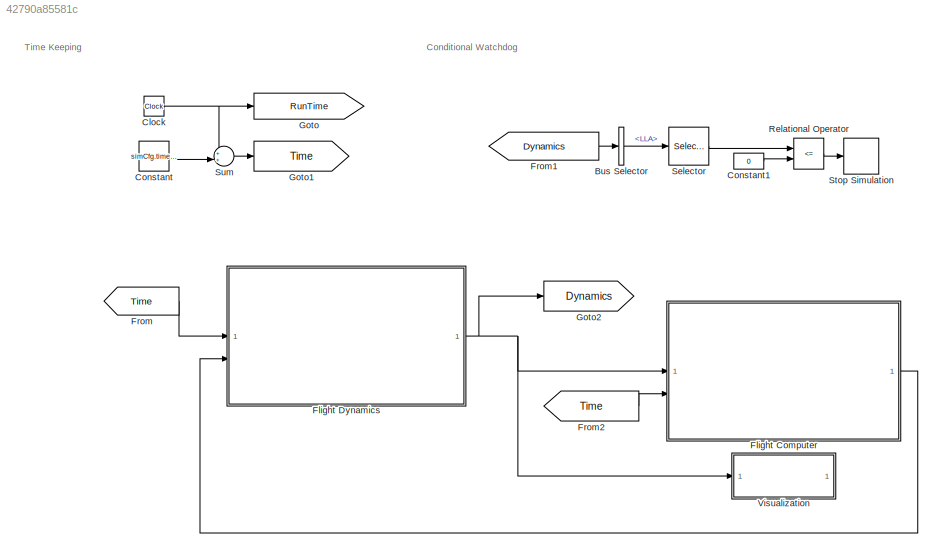
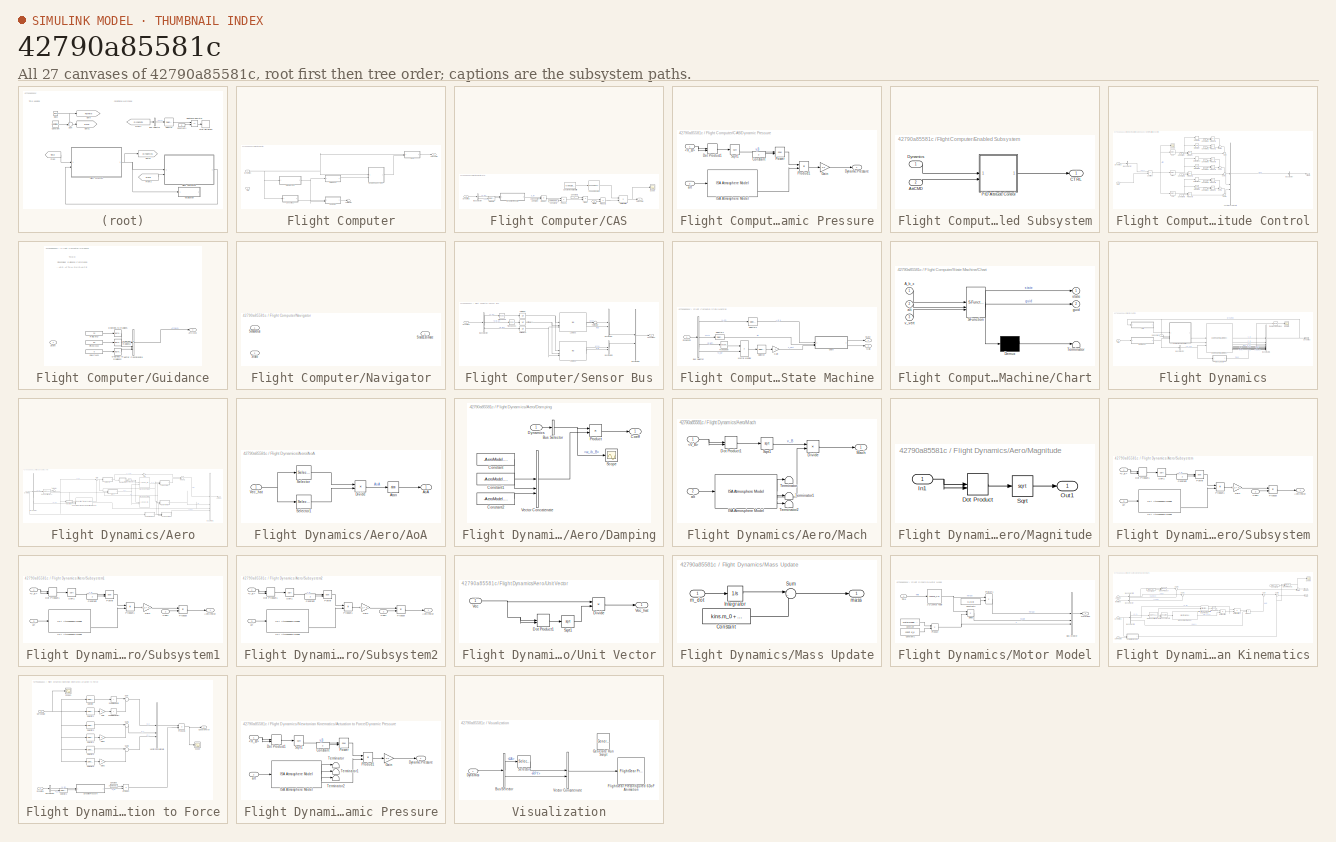
[diagram: thumbnail index - all 27 canvases of the model, root first then tree order]
MODEL slx_42790a85581c
KIND model
CONFIG AbsTol = auto
CONFIG EnableMultiTasking = off
CONFIG FixedStep = auto
CONFIG MaxStep = auto
CONFIG MinStep = auto
CONFIG RelTol = 1e-3
CONFIG SampleTimeConstraint = Unconstrained
CONFIG SolverName = FixedStepAuto
CONFIG StartTime = 0.0
CONFIG StopTime = 60
BLOCK [BusSelector] Bus Selector
  OutputSignals = LLA
BLOCK [Clock] Clock
BLOCK [Constant] Constant
  Value = simCfg.time.t0
BLOCK [Constant] Constant1
  Value = 0
BLOCK [SubSystem] Flight Computer
BLOCK [SubSystem] Flight Computer/CAS
BLOCK [Inport] Flight Computer/CAS/AttCMD
  Port = 2
BLOCK [BusSelector] Flight Computer/CAS/Bus Selector
  OutputSignals = V_B,LLA
BLOCK [Constant] Flight Computer/CAS/Canard Kinematic Matrix
  Value = [((kins.diameter/2) + (kins.canard.height/2)) -((kins.diameter/2) + (kins.canard.height/2)) ((kins.diameter/2) + (kins.canard.height/2)) -((kins.diameter/2) + (kins.canard.height/2)); 0 kins.x_cp 0 -kins.x_cp; -kins.x_cp 0 kins.x_cp 0]
BLOCK [Constant] Flight Computer/CAS/Constant
  Value = kins.canard.S
BLOCK [Constant] Flight Computer/CAS/Constant1
  Value = AeroModel.canard.CL_delta
BLOCK [Constant] Flight Computer/CAS/Constant2
BLOCK [Product] Flight Computer/CAS/Divide
  Inputs = */
BLOCK [SubSystem] Flight Computer/CAS/Dynamic Pressure
BLOCK [Inport] Flight Computer/CAS/Dynamic Pressure/<V_B>
BLOCK [Constant] Flight Computer/CAS/Dynamic Pressure/Constant
  Value = 2
BLOCK [DotProduct] Flight Computer/CAS/Dynamic Pressure/Dot Product1
  OutDataTypeStr = Inherit: Inherit via internal rule
BLOCK [Outport] Flight Computer/CAS/Dynamic Pressure/Dynamic Pressure
BLOCK [Gain] Flight Computer/CAS/Dynamic Pressure/Gain
  Gain = 1/2
BLOCK [Reference] Flight Computer/CAS/Dynamic Pressure/ISA Atmosphere Model  REF=aerolibatmos2/ISA Atmosphere Model
  SourceBlock = aerolibatmos2/ISA Atmosphere Model
  SourceType = International Standard Atmosphere Model
BLOCK [Math] Flight Computer/CAS/Dynamic Pressure/Power
  Operator = pow
BLOCK [Product] Flight Computer/CAS/Dynamic Pressure/Product1
BLOCK [Sqrt] Flight Computer/CAS/Dynamic Pressure/Sqrt1
BLOCK [Inport] Flight Computer/CAS/Dynamic Pressure/alt
  Port = 2
BLOCK [Inport] Flight Computer/CAS/Dynamics
BLOCK [Product] Flight Computer/CAS/Matrix Multiply
  Multiplication = Matrix(*)
BLOCK [Product] Flight Computer/CAS/Product
BLOCK [Product] Flight Computer/CAS/Product1
BLOCK [Product] Flight Computer/CAS/Product2
BLOCK [Reference] Flight Computer/CAS/Pseudoinverse  REF=dspinverses/Pseudoinverse
  SourceBlock = dspinverses/Pseudoinverse
  SourceType = Pseudoinverse
BLOCK [Scope] Flight Computer/CAS/Scope
  Floating = off
  NumInputPorts = 1
  ScopeSpecificationString = Simulink.scopes.TimeScopeBlockCfg('CurrentConfiguration', extmgr.ConfigurationSet(extmgr.Configuration('Core','General UI',true),extmgr.Configuration('Core','Source UI',true),extmgr.Configuration('Sources','WiredSimulink',true,'DataLoggingVariableName','ScopeData2'),extmgr.Configuration('Visuals','Time Domain',true,'SerializedDisplays',{struct('MinYLimReal','-3.42905','MaxYLimReal','2.1058','YLabe...<+1598ch>
BLOCK [Selector] Flight Computer/CAS/Selector
  IndexOptions = Index vector (dialog)
  Indices = 3
  InputPortWidth = 3
  OutputSizes = 1
BLOCK [Outport] Flight Computer/CAS/ServoCMD
BLOCK [Inport] Flight Computer/Dynamics
BLOCK [SubSystem] Flight Computer/Enabled Subsystem
  TreatAsAtomicUnit = on
BLOCK [Inport] Flight Computer/Enabled Subsystem/AttCMD
  Port = 2
BLOCK [Outport] Flight Computer/Enabled Subsystem/CTRL
BLOCK [Inport] Flight Computer/Enabled Subsystem/Dynamics
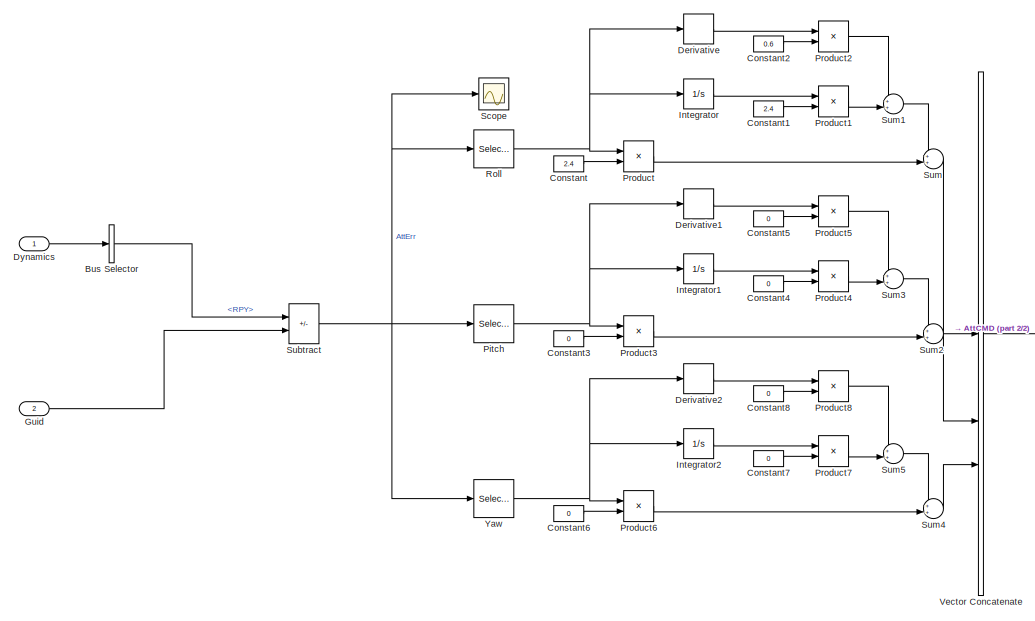
[diagram: Flight Computer/Enabled Subsystem/PID Attitude Control - part 1/2, left side, full height]
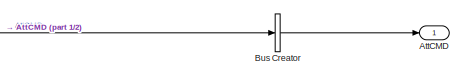
[diagram: Flight Computer/Enabled Subsystem/PID Attitude Control - part 2/2, middle right region]
BLOCK [SubSystem] Flight Computer/Enabled Subsystem/PID Attitude Control
BLOCK [Outport] Flight Computer/Enabled Subsystem/PID Attitude Control/AttCMD
BLOCK [BusCreator] Flight Computer/Enabled Subsystem/PID Attitude Control/Bus Creator
  DisplayOption = bar
  InheritFromInputs = on
  Inputs = 1
BLOCK [BusSelector] Flight Computer/Enabled Subsystem/PID Attitude Control/Bus Selector
  OutputSignals = RPY
BLOCK [Constant] Flight Computer/Enabled Subsystem/PID Attitude Control/Constant
  Value = 2.4
BLOCK [Constant] Flight Computer/Enabled Subsystem/PID Attitude Control/Constant1
  Value = 2.4
BLOCK [Constant] Flight Computer/Enabled Subsystem/PID Attitude Control/Constant2
  Value = 0.6
BLOCK [Constant] Flight Computer/Enabled Subsystem/PID Attitude Control/Constant3
  Value = 0
BLOCK [Constant] Flight Computer/Enabled Subsystem/PID Attitude Control/Constant4
  Value = 0
BLOCK [Constant] Flight Computer/Enabled Subsystem/PID Attitude Control/Constant5
  Value = 0
BLOCK [Constant] Flight Computer/Enabled Subsystem/PID Attitude Control/Constant6
  Value = 0
BLOCK [Constant] Flight Computer/Enabled Subsystem/PID Attitude Control/Constant7
  Value = 0
BLOCK [Constant] Flight Computer/Enabled Subsystem/PID Attitude Control/Constant8
  Value = 0
BLOCK [Derivative] Flight Computer/Enabled Subsystem/PID Attitude Control/Derivative
BLOCK [Derivative] Flight Computer/Enabled Subsystem/PID Attitude Control/Derivative1
BLOCK [Derivative] Flight Computer/Enabled Subsystem/PID Attitude Control/Derivative2
BLOCK [Inport] Flight Computer/Enabled Subsystem/PID Attitude Control/Dynamics
BLOCK [Inport] Flight Computer/Enabled Subsystem/PID Attitude Control/Guid
  Port = 2
BLOCK [Integrator] Flight Computer/Enabled Subsystem/PID Attitude Control/Integrator
BLOCK [Integrator] Flight Computer/Enabled Subsystem/PID Attitude Control/Integrator1
BLOCK [Integrator] Flight Computer/Enabled Subsystem/PID Attitude Control/Integrator2
BLOCK [Selector] Flight Computer/Enabled Subsystem/PID Attitude Control/Pitch
  IndexOptions = Index vector (dialog)
  Indices = 2
  InputPortWidth = 3
  OutputSizes = 1
BLOCK [Product] Flight Computer/Enabled Subsystem/PID Attitude Control/Product
BLOCK [Product] Flight Computer/Enabled Subsystem/PID Attitude Control/Product1
BLOCK [Product] Flight Computer/Enabled Subsystem/PID Attitude Control/Product2
BLOCK [Product] Flight Computer/Enabled Subsystem/PID Attitude Control/Product3
BLOCK [Product] Flight Computer/Enabled Subsystem/PID Attitude Control/Product4
BLOCK [Product] Flight Computer/Enabled Subsystem/PID Attitude Control/Product5
BLOCK [Product] Flight Computer/Enabled Subsystem/PID Attitude Control/Product6
BLOCK [Product] Flight Computer/Enabled Subsystem/PID Attitude Control/Product7
BLOCK [Product] Flight Computer/Enabled Subsystem/PID Attitude Control/Product8
BLOCK [Selector] Flight Computer/Enabled Subsystem/PID Attitude Control/Roll
  IndexOptions = Index vector (dialog)
  Indices = 1
  InputPortWidth = 3
  OutputSizes = 1
BLOCK [Scope] Flight Computer/Enabled Subsystem/PID Attitude Control/Scope
  Floating = off
  NumInputPorts = 1
  ScopeSpecificationString = Simulink.scopes.TimeScopeBlockCfg('CurrentConfiguration', extmgr.ConfigurationSet(extmgr.Configuration('Core','General UI',true),extmgr.Configuration('Core','Source UI',true),extmgr.Configuration('Sources','WiredSimulink',true,'DataLoggingVariableName','ScopeData3'),extmgr.Configuration('Visuals','Time Domain',true,'SerializedDisplays',{struct('MinYLimReal','-3.96555','MaxYLimReal','4.31765','YLab...<+1551ch>
BLOCK [Sum] Flight Computer/Enabled Subsystem/PID Attitude Control/Subtract
  IconShape = rectangular
  Inputs = -+
BLOCK [Sum] Flight Computer/Enabled Subsystem/PID Attitude Control/Sum
  Inputs = ++|
BLOCK [Sum] Flight Computer/Enabled Subsystem/PID Attitude Control/Sum1
  Inputs = ++|
BLOCK [Sum] Flight Computer/Enabled Subsystem/PID Attitude Control/Sum2
  Inputs = ++|
BLOCK [Sum] Flight Computer/Enabled Subsystem/PID Attitude Control/Sum3
  Inputs = ++|
BLOCK [Sum] Flight Computer/Enabled Subsystem/PID Attitude Control/Sum4
  Inputs = ++|
BLOCK [Sum] Flight Computer/Enabled Subsystem/PID Attitude Control/Sum5
  Inputs = ++|
BLOCK [Concatenate] Flight Computer/Enabled Subsystem/PID Attitude Control/Vector Concatenate
  NumInputs = 3
BLOCK [Selector] Flight Computer/Enabled Subsystem/PID Attitude Control/Yaw
  IndexOptions = Index vector (dialog)
  Indices = 3
  InputPortWidth = 3
  OutputSizes = 1
BLOCK [SubSystem] Flight Computer/Guidance
BLOCK [Outport] Flight Computer/Guidance/AttCMD
BLOCK [Reference] Flight Computer/Guidance/Degrees to Radians  REF=simulink_extras/Transformations/Degrees to
Radians
  SourceBlock = simulink_extras/Transformations/Degrees to\nRadians
  SourceType = DegreesToRadians
BLOCK [Reference] Flight Computer/Guidance/Degrees to Radians1  REF=simulink_extras/Transformations/Degrees to
Radians
  SourceBlock = simulink_extras/Transformations/Degrees to\nRadians
  SourceType = DegreesToRadians
BLOCK [Reference] Flight Computer/Guidance/Degrees to Radians2  REF=simulink_extras/Transformations/Degrees to
Radians
  SourceBlock = simulink_extras/Transformations/Degrees to\nRadians
  SourceType = DegreesToRadians
BLOCK [Constant] Flight Computer/Guidance/PitchCMD
  Value = 80
BLOCK [Constant] Flight Computer/Guidance/RollCMD
  Value = 20
BLOCK [Inport] Flight Computer/Guidance/State
BLOCK [Concatenate] Flight Computer/Guidance/Vector Concatenate
  NumInputs = 3
BLOCK [Constant] Flight Computer/Guidance/YawCMD
  Value = 0
BLOCK [SubSystem] Flight Computer/Navigator
BLOCK [Inport] Flight Computer/Navigator/SensorBus
BLOCK [Inport] Flight Computer/Navigator/State
  Port = 2
BLOCK [Outport] Flight Computer/Navigator/StateEstimate
BLOCK [SubSystem] Flight Computer/Sensor Bus
BLOCK [Reference] Flight Computer/Sensor Bus/ASM330  REF=mspsensorlib/IMU
  SourceBlock = mspsensorlib/IMU
  SourceType = fusion.simulink.imuSensor
BLOCK [BusCreator] Flight Computer/Sensor Bus/Bus Creator
  DisplayOption = bar
  InheritFromInputs = on
  Inputs = 2
BLOCK [BusCreator] Flight Computer/Sensor Bus/Bus Creator1
  DisplayOption = bar
  InheritFromInputs = on
  Inputs = 2
BLOCK [BusCreator] Flight Computer/Sensor Bus/Bus Creator2
  DisplayOption = bar
  InheritFromInputs = on
  Inputs = 2
BLOCK [BusSelector] Flight Computer/Sensor Bus/Bus Selector
  OutputSignals = A_b,w_ib_B,R_BT
BLOCK [Inport] Flight Computer/Sensor Bus/Dynamics
BLOCK [Reference] Flight Computer/Sensor Bus/LSM303  REF=mspsensorlib/IMU
  SourceBlock = mspsensorlib/IMU
  SourceType = fusion.simulink.imuSensor
BLOCK [Outport] Flight Computer/Sensor Bus/SensorBus
BLOCK [Terminator] Flight Computer/Sensor Bus/Terminator
BLOCK [Math] Flight Computer/Sensor Bus/Transpose
  Operator = transpose
BLOCK [Math] Flight Computer/Sensor Bus/Transpose1
  Operator = transpose
BLOCK [UnitDelay] Flight Computer/Sensor Bus/Unit Delay
  HasFrameUpgradeWarning = on
  SampleTime = -1
BLOCK [UnitDelay] Flight Computer/Sensor Bus/Unit Delay1
  HasFrameUpgradeWarning = on
  SampleTime = -1
BLOCK [UnitDelay] Flight Computer/Sensor Bus/Unit Delay2
  HasFrameUpgradeWarning = on
  SampleTime = -1
BLOCK [Outport] Flight Computer/ServoCMD
BLOCK [SubSystem] Flight Computer/State Machine
BLOCK [BusSelector] Flight Computer/State Machine/Bus Selector
  OutputSignals = A_b,mass,LLA,R_BT,V_B
BLOCK [SubSystem] Flight Computer/State Machine/Chart
  ErrorFcn = Stateflow.Translate.translate
  PermitHierarchicalResolution = ExplicitOnly
  SFBlockType = Chart
  TreatAsAtomicUnit = on
BLOCK [Demux] Flight Computer/State Machine/Chart/ Demux 
  Outputs = 1
BLOCK [S-Function] Flight Computer/State Machine/Chart/ SFunction 
  EnableBusSupport = on
  FunctionName = sf_sfun
  PortCounts = [3 3]
  SFcnIsStateOwnerBlock = off
  SFunctionDeploymentMode = off
  Tag = Stateflow S-Function 3
BLOCK [Terminator] Flight Computer/State Machine/Chart/ Terminator 
BLOCK [Inport] Flight Computer/State Machine/Chart/A_b_x
BLOCK [Inport] Flight Computer/State Machine/Chart/alt
  Port = 2
BLOCK [Outport] Flight Computer/State Machine/Chart/guid
  Port = 2
BLOCK [Outport] Flight Computer/State Machine/Chart/state
BLOCK [Inport] Flight Computer/State Machine/Chart/v_vert
  Port = 3
BLOCK [Inport] Flight Computer/State Machine/Dynamics
BLOCK [Gain] Flight Computer/State Machine/Gain
  Gain = -1
BLOCK [Outport] Flight Computer/State Machine/Guid
  Port = 2
BLOCK [Product] Flight Computer/State Machine/Matrix Multiply
  Multiplication = Matrix(*)
BLOCK [Selector] Flight Computer/State Machine/Selector
  IndexOptions = Index vector (dialog)
  Indices = 3
  InputPortWidth = 3
  OutputSizes = 1
BLOCK [Selector] Flight Computer/State Machine/Selector1
  IndexOptions = Index vector (dialog)
  Indices = 3
  InputPortWidth = 3
  OutputSizes = 1
BLOCK [Selector] Flight Computer/State Machine/Selector2
  IndexOptions = Index vector (dialog)
  Indices = 1
  InputPortWidth = 3
  OutputSizes = 1
BLOCK [Outport] Flight Computer/State Machine/State
BLOCK [Math] Flight Computer/State Machine/Transpose
  Operator = transpose
BLOCK [Terminator] Flight Computer/Terminator
BLOCK [Inport] Flight Computer/Time
  Port = 2
BLOCK [SubSystem] Flight Dynamics
BLOCK [Reference] Flight Dynamics/6DOF ECEF (Quaternion)  REF=aerolib6dof2/6DOF ECEF (Quaternion)
  SourceBlock = aerolib6dof2/6DOF ECEF (Quaternion)
  SourceType = 6DOF EoM (ECEF)
BLOCK [SubSystem] Flight Dynamics/Aero
BLOCK [Lookup_n-D] Flight Dynamics/Aero/2-D Lookup Table1
  BreakpointsForDimension1 = AeroModel.AoAs
  BreakpointsForDimension2 = AeroModel.MachNumbers
  InputPortMap = u0,u1
  InternalRulePriority = Speed
  RndMeth = Simplest
  Table = AeroModel.CdGrid
BLOCK [Lookup_n-D] Flight Dynamics/Aero/2-D Lookup Table2
  BreakpointsForDimension1 = AeroModel.AoAs
  BreakpointsForDimension2 = AeroModel.MachNumbers
  InputPortMap = u0,u1
  InternalRulePriority = Speed
  RndMeth = Simplest
  Table = AeroModel.ClGrid
BLOCK [Outport] Flight Dynamics/Aero/AeroBus
BLOCK [SubSystem] Flight Dynamics/Aero/AoA
BLOCK [Outport] Flight Dynamics/Aero/AoA/AoA
BLOCK [Trigonometry] Flight Dynamics/Aero/AoA/Atan
  Operator = atan
BLOCK [Product] Flight Dynamics/Aero/AoA/Divide
  Inputs = */
BLOCK [Selector] Flight Dynamics/Aero/AoA/Selector
  IndexOptions = Index vector (dialog)
  Indices = 3
  InputPortWidth = 3
  OutputSizes = 1
BLOCK [Selector] Flight Dynamics/Aero/AoA/Selector1
  IndexOptions = Index vector (dialog)
  Indices = 1
  InputPortWidth = 3
  OutputSizes = 1
BLOCK [Inport] Flight Dynamics/Aero/AoA/Vec_hat
BLOCK [BusCreator] Flight Dynamics/Aero/Bus Creator1
  DisplayOption = bar
  InheritFromInputs = on
  Inputs = 4
BLOCK [BusSelector] Flight Dynamics/Aero/Bus Selector
  OutputSignals = V_B,P_E,R_BT
BLOCK [SubSystem] Flight Dynamics/Aero/Damping
BLOCK [BusSelector] Flight Dynamics/Aero/Damping/Bus Selector
  OutputSignals = w_ib_B
BLOCK [Outport] Flight Dynamics/Aero/Damping/Coeff
BLOCK [Constant] Flight Dynamics/Aero/Damping/Constant
  Value = -AeroModel.damping.Cd_x*kins.S*kins.x_cp
BLOCK [Constant] Flight Dynamics/Aero/Damping/Constant1
  Value = -AeroModel.damping.Cd_y*kins.S*kins.x_cp
BLOCK [Constant] Flight Dynamics/Aero/Damping/Constant2
  Value = -AeroModel.damping.Cd_z*kins.S*kins.x_cp
BLOCK [Inport] Flight Dynamics/Aero/Damping/Dynamics
BLOCK [Product] Flight Dynamics/Aero/Damping/Product
BLOCK [Scope] Flight Dynamics/Aero/Damping/Scope
  Floating = off
  NumInputPorts = 1
  ScopeSpecificationString = Simulink.scopes.TimeScopeBlockCfg('CurrentConfiguration', extmgr.ConfigurationSet(extmgr.Configuration('Core','General UI',true),extmgr.Configuration('Core','Source UI',true),extmgr.Configuration('Sources','WiredSimulink',true,'DataLoggingVariableName','ScopeData3'),extmgr.Configuration('Visuals','Time Domain',true,'SerializedDisplays',{struct('MinYLimReal','-0.11919','MaxYLimReal','0.07683','YLab...<+1484ch>
BLOCK [Concatenate] Flight Dynamics/Aero/Damping/Vector Concatenate
  NumInputs = 3
BLOCK [Reference] Flight Dynamics/Aero/Dryden Wind Turbulence Model (Discrete (+q +r))  REF=aerolibwind2/Dryden Wind Turbulence Model 
(Continuous (+q -r))
  LibrarySourceBlock = aerolibwind2/Dryden Wind Turbulence Model \n(Discrete (+q +r))
  SourceBlock = aerolibwind2/Dryden Wind Turbulence Model \n(Continuous (+q -r))
  SourceType = Wind Turbulence Model
BLOCK [Inport] Flight Dynamics/Aero/Dynamics
BLOCK [ECEF2LLA] Flight Dynamics/Aero/ECEF Position to LLA
BLOCK [Gain] Flight Dynamics/Aero/Gain
  Gain = -1
BLOCK [SubSystem] Flight Dynamics/Aero/Mach
BLOCK [Inport] Flight Dynamics/Aero/Mach/<V_B>
BLOCK [Product] Flight Dynamics/Aero/Mach/Divide
  Inputs = */
BLOCK [DotProduct] Flight Dynamics/Aero/Mach/Dot Product1
  OutDataTypeStr = Inherit: Inherit via internal rule
BLOCK [Reference] Flight Dynamics/Aero/Mach/ISA Atmosphere Model  REF=aerolibatmos2/ISA Atmosphere Model
  SourceBlock = aerolibatmos2/ISA Atmosphere Model
  SourceType = International Standard Atmosphere Model
BLOCK [Outport] Flight Dynamics/Aero/Mach/Mach
BLOCK [Sqrt] Flight Dynamics/Aero/Mach/Sqrt1
BLOCK [Terminator] Flight Dynamics/Aero/Mach/Terminator
BLOCK [Terminator] Flight Dynamics/Aero/Mach/Terminator1
BLOCK [Terminator] Flight Dynamics/Aero/Mach/Terminator2
BLOCK [Inport] Flight Dynamics/Aero/Mach/alt
  Port = 2
BLOCK [SubSystem] Flight Dynamics/Aero/Magnitude
BLOCK [DotProduct] Flight Dynamics/Aero/Magnitude/Dot Product
  OutDataTypeStr = Inherit: Inherit via internal rule
BLOCK [Inport] Flight Dynamics/Aero/Magnitude/In1
BLOCK [Outport] Flight Dynamics/Aero/Magnitude/Out1
BLOCK [Sqrt] Flight Dynamics/Aero/Magnitude/Sqrt
BLOCK [Product] Flight Dynamics/Aero/Product1
BLOCK [Reference] Flight Dynamics/Aero/Radians to Degrees  REF=simulink_extras/Transformations/Radians
to Degrees
  SourceBlock = simulink_extras/Transformations/Radians\nto Degrees
  SourceType = RadiansToDegrees
BLOCK [SubSystem] Flight Dynamics/Aero/Subsystem
BLOCK [Inport] Flight Dynamics/Aero/Subsystem/<V_B>
BLOCK [Outport] Flight Dynamics/Aero/Subsystem/Aero Force
BLOCK [Inport] Flight Dynamics/Aero/Subsystem/Coeff
  Port = 2
BLOCK [Constant] Flight Dynamics/Aero/Subsystem/Constant
  Value = 2
BLOCK [DotProduct] Flight Dynamics/Aero/Subsystem/Dot Product1
  OutDataTypeStr = Inherit: Inherit via internal rule
BLOCK [Gain] Flight Dynamics/Aero/Subsystem/Gain
  Gain = 1/2 * kins.S
BLOCK [Reference] Flight Dynamics/Aero/Subsystem/ISA Atmosphere Model  REF=aerolibatmos2/ISA Atmosphere Model
  SourceBlock = aerolibatmos2/ISA Atmosphere Model
  SourceType = International Standard Atmosphere Model
BLOCK [Math] Flight Dynamics/Aero/Subsystem/Power
  Operator = pow
BLOCK [Product] Flight Dynamics/Aero/Subsystem/Product
BLOCK [Product] Flight Dynamics/Aero/Subsystem/Product1
BLOCK [Sqrt] Flight Dynamics/Aero/Subsystem/Sqrt1
BLOCK [Inport] Flight Dynamics/Aero/Subsystem/alt
  Port = 3
BLOCK [SubSystem] Flight Dynamics/Aero/Subsystem1
BLOCK [Inport] Flight Dynamics/Aero/Subsystem1/<V_B>
BLOCK [Outport] Flight Dynamics/Aero/Subsystem1/Aero Force
BLOCK [Inport] Flight Dynamics/Aero/Subsystem1/Coeff
  Port = 2
BLOCK [Constant] Flight Dynamics/Aero/Subsystem1/Constant
  Value = 2
BLOCK [DotProduct] Flight Dynamics/Aero/Subsystem1/Dot Product1
  OutDataTypeStr = Inherit: Inherit via internal rule
BLOCK [Gain] Flight Dynamics/Aero/Subsystem1/Gain
  Gain = 1/2 * kins.S
BLOCK [Reference] Flight Dynamics/Aero/Subsystem1/ISA Atmosphere Model  REF=aerolibatmos2/ISA Atmosphere Model
  SourceBlock = aerolibatmos2/ISA Atmosphere Model
  SourceType = International Standard Atmosphere Model
BLOCK [Math] Flight Dynamics/Aero/Subsystem1/Power
  Operator = pow
BLOCK [Product] Flight Dynamics/Aero/Subsystem1/Product
BLOCK [Product] Flight Dynamics/Aero/Subsystem1/Product1
BLOCK [Sqrt] Flight Dynamics/Aero/Subsystem1/Sqrt1
BLOCK [Inport] Flight Dynamics/Aero/Subsystem1/alt
  Port = 3
BLOCK [SubSystem] Flight Dynamics/Aero/Subsystem2
BLOCK [Inport] Flight Dynamics/Aero/Subsystem2/<V_B>
BLOCK [Outport] Flight Dynamics/Aero/Subsystem2/Aero Force
BLOCK [Inport] Flight Dynamics/Aero/Subsystem2/Coeff
  Port = 2
BLOCK [Constant] Flight Dynamics/Aero/Subsystem2/Constant
  Value = 2
BLOCK [DotProduct] Flight Dynamics/Aero/Subsystem2/Dot Product1
  OutDataTypeStr = Inherit: Inherit via internal rule
BLOCK [Gain] Flight Dynamics/Aero/Subsystem2/Gain
  Gain = 1/2 * kins.S
BLOCK [Reference] Flight Dynamics/Aero/Subsystem2/ISA Atmosphere Model  REF=aerolibatmos2/ISA Atmosphere Model
  SourceBlock = aerolibatmos2/ISA Atmosphere Model
  SourceType = International Standard Atmosphere Model
BLOCK [Math] Flight Dynamics/Aero/Subsystem2/Power
  Operator = pow
BLOCK [Product] Flight Dynamics/Aero/Subsystem2/Product
BLOCK [Product] Flight Dynamics/Aero/Subsystem2/Product1
BLOCK [Sqrt] Flight Dynamics/Aero/Subsystem2/Sqrt1
BLOCK [Inport] Flight Dynamics/Aero/Subsystem2/alt
  Port = 3
BLOCK [Sum] Flight Dynamics/Aero/Sum
  Inputs = |++
BLOCK [Terminator] Flight Dynamics/Aero/Terminator
BLOCK [SubSystem] Flight Dynamics/Aero/Unit Vector
BLOCK [Product] Flight Dynamics/Aero/Unit Vector/Divide
  Inputs = */
BLOCK [DotProduct] Flight Dynamics/Aero/Unit Vector/Dot Product1
  OutDataTypeStr = Inherit: Inherit via internal rule
BLOCK [Sqrt] Flight Dynamics/Aero/Unit Vector/Sqrt1
BLOCK [Inport] Flight Dynamics/Aero/Unit Vector/Vec
BLOCK [Outport] Flight Dynamics/Aero/Unit Vector/Vec_hat
BLOCK [BusCreator] Flight Dynamics/Bus Creator1
  DisplayOption = bar
  InheritFromInputs = on
  Inputs = 13
BLOCK [BusSelector] Flight Dynamics/Bus Selector
  OutputSignals = m_dot
BLOCK [Outport] Flight Dynamics/Dynamics
BLOCK [SubSystem] Flight Dynamics/Mass Update
BLOCK [Constant] Flight Dynamics/Mass Update/Constant
  Value = kins.m_0 + MotorModel.emptyWt + MotorModel.propWt
BLOCK [Integrator] Flight Dynamics/Mass Update/Integrator
BLOCK [Sum] Flight Dynamics/Mass Update/Sum
  Inputs = |-+
BLOCK [Inport] Flight Dynamics/Mass Update/m_dot
BLOCK [Outport] Flight Dynamics/Mass Update/mass
BLOCK [SubSystem] Flight Dynamics/Motor Model
BLOCK [Lookup_n-D] Flight Dynamics/Motor Model/2-D Lookup Table
  ApplyFullPrecisionForLinearInterpolation = on
  BreakpointsForDimension1 = MotorModel.timePts
  BreakpointsForDimension2 = [1:3]
  ExtrapMethod = Clip
  InputPortMap = u0
  InternalRulePriority = Speed
  NumberOfTableDimensions = 1
  RndMeth = Simplest
  Table = MotorModel.thrustPts
BLOCK [BusCreator] Flight Dynamics/Motor Model/Bus Creator
  DisplayOption = bar
  InheritFromInputs = on
  Inputs = 3
BLOCK [Constant] Flight Dynamics/Motor Model/Constant
  Value = MotorModel.Isp
BLOCK [Constant] Flight Dynamics/Motor Model/Constant1
  Value = const.g_e
BLOCK [Constant] Flight Dynamics/Motor Model/Constant2
  Value = [1;0;0]
BLOCK [Product] Flight Dynamics/Motor Model/Divide
  Inputs = */
BLOCK [Outport] Flight Dynamics/Motor Model/MotorBus
BLOCK [Product] Flight Dynamics/Motor Model/Product
BLOCK [Product] Flight Dynamics/Motor Model/Product1
BLOCK [Inport] Flight Dynamics/Motor Model/Time
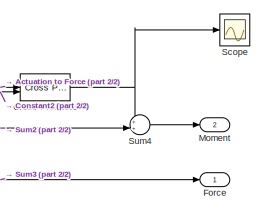
[diagram: Flight Dynamics/Newtonian Kinematics - part 1/2, top right region]
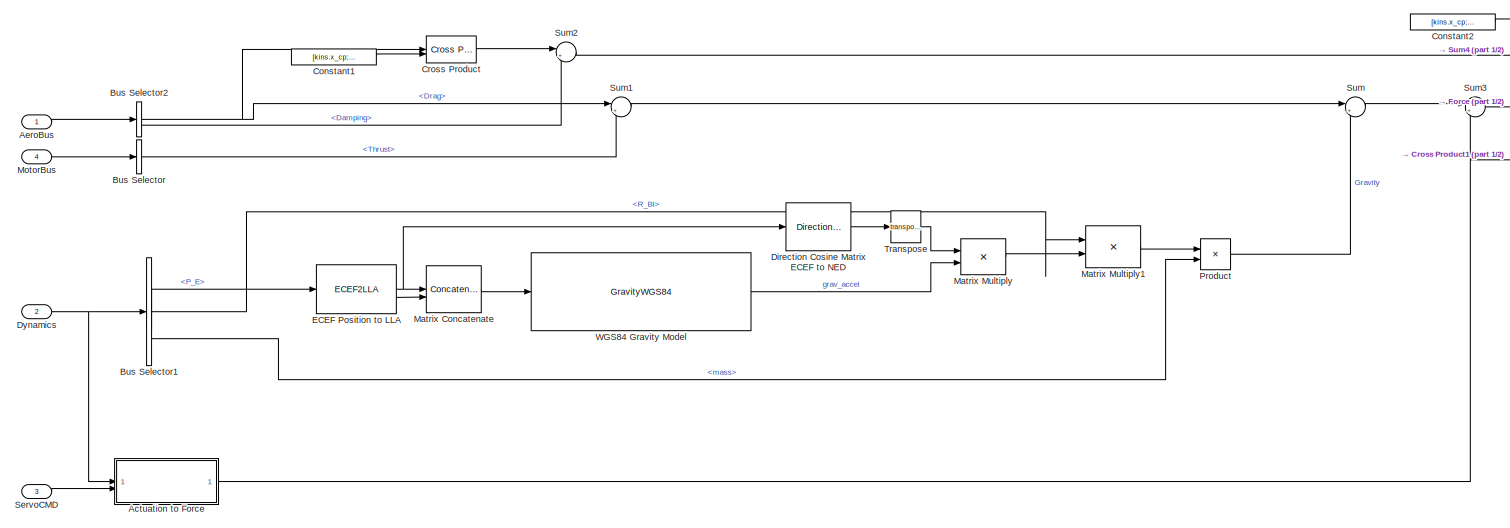
[diagram: Flight Dynamics/Newtonian Kinematics - part 2/2, most of the canvas]
BLOCK [SubSystem] Flight Dynamics/Newtonian Kinematics
BLOCK [SubSystem] Flight Dynamics/Newtonian Kinematics/Actuation to Force
BLOCK [BusSelector] Flight Dynamics/Newtonian Kinematics/Actuation to Force/Bus Selector
  OutputSignals = V_B,LLA
BLOCK [Outport] Flight Dynamics/Newtonian Kinematics/Actuation to Force/Canard Force
BLOCK [Constant] Flight Dynamics/Newtonian Kinematics/Actuation to Force/Constant
  Value = AeroModel.canard.CL_delta * kins.canard.S
BLOCK [SubSystem] Flight Dynamics/Newtonian Kinematics/Actuation to Force/Dynamic Pressure
BLOCK [Inport] Flight Dynamics/Newtonian Kinematics/Actuation to Force/Dynamic Pressure/<V_B>
BLOCK [Constant] Flight Dynamics/Newtonian Kinematics/Actuation to Force/Dynamic Pressure/Constant
  Value = 2
BLOCK [DotProduct] Flight Dynamics/Newtonian Kinematics/Actuation to Force/Dynamic Pressure/Dot Product1
  OutDataTypeStr = Inherit: Inherit via internal rule
BLOCK [Outport] Flight Dynamics/Newtonian Kinematics/Actuation to Force/Dynamic Pressure/Dynamic Pressure
BLOCK [Gain] Flight Dynamics/Newtonian Kinematics/Actuation to Force/Dynamic Pressure/Gain
  Gain = 1/2
BLOCK [Reference] Flight Dynamics/Newtonian Kinematics/Actuation to Force/Dynamic Pressure/ISA Atmosphere Model  REF=aerolibatmos2/ISA Atmosphere Model
  SourceBlock = aerolibatmos2/ISA Atmosphere Model
  SourceType = International Standard Atmosphere Model
BLOCK [Math] Flight Dynamics/Newtonian Kinematics/Actuation to Force/Dynamic Pressure/Power
  Operator = pow
BLOCK [Product] Flight Dynamics/Newtonian Kinematics/Actuation to Force/Dynamic Pressure/Product1
BLOCK [Sqrt] Flight Dynamics/Newtonian Kinematics/Actuation to Force/Dynamic Pressure/Sqrt1
BLOCK [Terminator] Flight Dynamics/Newtonian Kinematics/Actuation to Force/Dynamic Pressure/Terminator
BLOCK [Terminator] Flight Dynamics/Newtonian Kinematics/Actuation to Force/Dynamic Pressure/Terminator1
BLOCK [Terminator] Flight Dynamics/Newtonian Kinematics/Actuation to Force/Dynamic Pressure/Terminator2
BLOCK [Inport] Flight Dynamics/Newtonian Kinematics/Actuation to Force/Dynamic Pressure/alt
  Port = 2
BLOCK [Inport] Flight Dynamics/Newtonian Kinematics/Actuation to Force/Dynamics
BLOCK [Gain] Flight Dynamics/Newtonian Kinematics/Actuation to Force/Gain
  Gain = -1
BLOCK [Gain] Flight Dynamics/Newtonian Kinematics/Actuation to Force/Gain1
  Gain = -1
BLOCK [Gain] Flight Dynamics/Newtonian Kinematics/Actuation to Force/Gain2
  Gain = -1
BLOCK [Product] Flight Dynamics/Newtonian Kinematics/Actuation to Force/Product
BLOCK [Product] Flight Dynamics/Newtonian Kinematics/Actuation to Force/Product1
BLOCK [Scope] Flight Dynamics/Newtonian Kinematics/Actuation to Force/Scope
  Floating = off
  NumInputPorts = 1
  ScopeSpecificationString = Simulink.scopes.TimeScopeBlockCfg('CurrentConfiguration', extmgr.ConfigurationSet(extmgr.Configuration('Core','General UI',true),extmgr.Configuration('Core','Source UI',true),extmgr.Configuration('Sources','WiredSimulink',true,'DataLoggingVariableName','ScopeData1'),extmgr.Configuration('Visuals','Time Domain',true,'SerializedDisplays',{struct('MinYLimReal','-348.19754','MaxYLimReal','847.94619','...<+1527ch>
BLOCK [Scope] Flight Dynamics/Newtonian Kinematics/Actuation to Force/Scope1
  Floating = off
  NumInputPorts = 1
  ScopeSpecificationString = Simulink.scopes.TimeScopeBlockCfg('CurrentConfiguration', extmgr.ConfigurationSet(extmgr.Configuration('Core','General UI',true),extmgr.Configuration('Core','Source UI',true),extmgr.Configuration('Sources','WiredSimulink',true,'DataLoggingVariableName','ScopeData2'),extmgr.Configuration('Visuals','Time Domain',true,'SerializedDisplays',{struct('MinYLimReal','-0.29471','MaxYLimReal','0.15412','YLab...<+1572ch>
BLOCK [Selector] Flight Dynamics/Newtonian Kinematics/Actuation to Force/Selector
  IndexOptions = Index vector (dialog)
  Indices = [1 3]
  InputPortWidth = 4
  OutputSizes = 1
BLOCK [Selector] Flight Dynamics/Newtonian Kinematics/Actuation to Force/Selector1
  IndexOptions = Index vector (dialog)
  Indices = [2 4]
  InputPortWidth = 4
  OutputSizes = 1
BLOCK [Selector] Flight Dynamics/Newtonian Kinematics/Actuation to Force/Selector2
  IndexOptions = Index vector (dialog)
  Indices = 3
  InputPortWidth = 3
  OutputSizes = 1
BLOCK [Selector] Flight Dynamics/Newtonian Kinematics/Actuation to Force/Selector3
  IndexOptions = Index vector (dialog)
  Indices = 1
  InputPortWidth = 4
  OutputSizes = 1
BLOCK [Selector] Flight Dynamics/Newtonian Kinematics/Actuation to Force/Selector4
  IndexOptions = Index vector (dialog)
  Indices = 3
  InputPortWidth = 4
  OutputSizes = 1
BLOCK [Selector] Flight Dynamics/Newtonian Kinematics/Actuation to Force/Selector5
  IndexOptions = Index vector (dialog)
  Indices = 4
  InputPortWidth = 4
  OutputSizes = 1
BLOCK [Selector] Flight Dynamics/Newtonian Kinematics/Actuation to Force/Selector6
  IndexOptions = Index vector (dialog)
  Indices = 2
  InputPortWidth = 4
  OutputSizes = 1
BLOCK [Inport] Flight Dynamics/Newtonian Kinematics/Actuation to Force/ServoCMD
  Port = 2
BLOCK [Sum] Flight Dynamics/Newtonian Kinematics/Actuation to Force/Sum
  Inputs = |++
BLOCK [Sum] Flight Dynamics/Newtonian Kinematics/Actuation to Force/Sum of Elements
  IconShape = rectangular
  Inputs = +
BLOCK [Sum] Flight Dynamics/Newtonian Kinematics/Actuation to Force/Sum of Elements1
  IconShape = rectangular
  Inputs = +
BLOCK [Sum] Flight Dynamics/Newtonian Kinematics/Actuation to Force/Sum1
  Inputs = |++
BLOCK [Sum] Flight Dynamics/Newtonian Kinematics/Actuation to Force/Sum2
  Inputs = |++
BLOCK [Concatenate] Flight Dynamics/Newtonian Kinematics/Actuation to Force/Vector Concatenate
  NumInputs = 3
BLOCK [Inport] Flight Dynamics/Newtonian Kinematics/AeroBus
BLOCK [BusSelector] Flight Dynamics/Newtonian Kinematics/Bus Selector
  OutputSignals = Thrust
BLOCK [BusSelector] Flight Dynamics/Newtonian Kinematics/Bus Selector1
  OutputSignals = R_BI,P_E,mass,V_B,R_BT
BLOCK [BusSelector] Flight Dynamics/Newtonian Kinematics/Bus Selector2
  OutputSignals = Drag,Damping
BLOCK [Constant] Flight Dynamics/Newtonian Kinematics/Constant1
  Value = [kins.x_cp; 0; 0]
BLOCK [Constant] Flight Dynamics/Newtonian Kinematics/Constant2
  Value = [kins.x_cp; ((kins.diameter/2) + (kins.canard.height/2)); ((kins.diameter/2) + (kins.canard.height/2))]
BLOCK [Reference] Flight Dynamics/Newtonian Kinematics/Cross Product  REF=matrix_library/Cross Product
  LibrarySourceBlock = simulink/Matrix\nOperations/Cross Product
  SourceBlock = matrix_library/Cross Product
  SourceType = CrossProduct
BLOCK [Reference] Flight Dynamics/Newtonian Kinematics/Cross Product1  REF=matrix_library/Cross Product
  LibrarySourceBlock = simulink/Matrix\nOperations/Cross Product
  SourceBlock = matrix_library/Cross Product
  SourceType = CrossProduct
BLOCK [Reference] Flight Dynamics/Newtonian Kinematics/Direction Cosine Matrix ECEF to NED  REF=aerolibtransform2/Direction Cosine Matrix
ECEF to NED
  SourceBlock = aerolibtransform2/Direction Cosine Matrix\nECEF to NED
  SourceType = DCM ECEF to NED
BLOCK [Inport] Flight Dynamics/Newtonian Kinematics/Dynamics
  Port = 2
BLOCK [ECEF2LLA] Flight Dynamics/Newtonian Kinematics/ECEF Position to LLA
BLOCK [Outport] Flight Dynamics/Newtonian Kinematics/Force
BLOCK [Concatenate] Flight Dynamics/Newtonian Kinematics/Matrix Concatenate
BLOCK [Product] Flight Dynamics/Newtonian Kinematics/Matrix Multiply
  Multiplication = Matrix(*)
BLOCK [Product] Flight Dynamics/Newtonian Kinematics/Matrix Multiply1
  Multiplication = Matrix(*)
BLOCK [Outport] Flight Dynamics/Newtonian Kinematics/Moment
  Port = 2
BLOCK [Inport] Flight Dynamics/Newtonian Kinematics/MotorBus
  Port = 4
BLOCK [Product] Flight Dynamics/Newtonian Kinematics/Product
BLOCK [Scope] Flight Dynamics/Newtonian Kinematics/Scope
  Floating = off
  NumInputPorts = 1
  ScopeSpecificationString = Simulink.scopes.TimeScopeBlockCfg('CurrentConfiguration', extmgr.ConfigurationSet(extmgr.Configuration('Core','General UI',true),extmgr.Configuration('Core','Source UI',true),extmgr.Configuration('Sources','WiredSimulink',true,'DataLoggingVariableName','ScopeData4'),extmgr.Configuration('Visuals','Time Domain',true,'SerializedDisplays',{struct('MinYLimReal','-0.0000000000000003','MaxYLimReal','0.0...<+1622ch>
BLOCK [Inport] Flight Dynamics/Newtonian Kinematics/ServoCMD
  Port = 3
BLOCK [Sum] Flight Dynamics/Newtonian Kinematics/Sum
  Inputs = |++
BLOCK [Sum] Flight Dynamics/Newtonian Kinematics/Sum1
  Inputs = |++
BLOCK [Sum] Flight Dynamics/Newtonian Kinematics/Sum2
  Inputs = |++
BLOCK [Sum] Flight Dynamics/Newtonian Kinematics/Sum3
  Inputs = |++
BLOCK [Sum] Flight Dynamics/Newtonian Kinematics/Sum4
  Inputs = ++|
BLOCK [Math] Flight Dynamics/Newtonian Kinematics/Transpose
  Operator = transpose
BLOCK [GravityWGS84] Flight Dynamics/Newtonian Kinematics/WGS84 Gravity Model  
BLOCK [Reference] Flight Dynamics/Radians to Degrees  REF=simulink_extras/Transformations/Radians
to Degrees
  SourceBlock = simulink_extras/Transformations/Radians\nto Degrees
  SourceType = RadiansToDegrees
BLOCK [Scope] Flight Dynamics/Scope
  Floating = off
  NumInputPorts = 1
  ScopeSpecificationString = Simulink.scopes.TimeScopeBlockCfg('CurrentConfiguration', extmgr.ConfigurationSet(extmgr.Configuration('Core','General UI',true),extmgr.Configuration('Core','Source UI',true),extmgr.Configuration('Sources','WiredSimulink',true,'DataLoggingVariableName','ScopeData1'),extmgr.Configuration('Visuals','Time Domain',true,'SerializedDisplays',{struct('MinYLimReal','-220.87444','MaxYLimReal','221.05192','...<+1579ch>
BLOCK [Inport] Flight Dynamics/ServoCMD
  Port = 2
BLOCK [Inport] Flight Dynamics/Time
BLOCK [From] From
  GotoTag = Time
BLOCK [From] From1
  GotoTag = Dynamics
BLOCK [From] From2
  GotoTag = Time
BLOCK [Goto] Goto
  GotoTag = RunTime
BLOCK [Goto] Goto1
  GotoTag = Time
BLOCK [Goto] Goto2
  GotoTag = Dynamics
BLOCK [RelationalOperator] Relational Operator
  InputSameDT = off
  Operator = <=
  OutDataTypeStr = boolean
  RndMeth = Simplest
BLOCK [Selector] Selector
  IndexOptions = Index vector (dialog)
  Indices = 3
  InputPortWidth = 3
  OutputSizes = 1
BLOCK [Stop] Stop Simulation
BLOCK [Sum] Sum
  Inputs = ++|
BLOCK [SubSystem] Visualization
BLOCK [BusSelector] Visualization/Bus Selector
  OutputSignals = LLA,RPY
BLOCK [Inport] Visualization/Dynamics
BLOCK [Reference] Visualization/FlightGear Preconfigured 6DoF Animation  REF=aerolibfltsims/FlightGear
Preconfigured
6DoF Animation
  SourceBlock = aerolibfltsims/FlightGear\nPreconfigured\n6DoF Animation
  SourceType = FlightGearQuick6DoFAnimation
BLOCK [Reference] Visualization/Generate Run Script  REF=aerolibfltsims/Generate
Run Script
  SourceBlock = aerolibfltsims/Generate\nRun Script
  SourceType = Generate FlightGear Run Script
BLOCK [Selector] Visualization/Selector
  IndexOptions = Index vector (dialog)
  Indices = [2 1 3]
  InputPortWidth = 3
  OutputSizes = 1
BLOCK [Concatenate] Visualization/Vector Concatenate
ANNOTATION (root): Conditional Watchdog
ANNOTATION (root): Time Keeping
ANNOTATION Flight Computer/Guidance: TODO Placeholder Guidance Commands - ADD ACTUAL GUIDANCE
LINE Bus Selector:1 -> Selector:1
NET Clock:1 -> Goto:1, Sum:1
LINE Constant1:1 -> Relational Operator:2
LINE Constant:1 -> Sum:2
LINE Flight Computer/CAS/AttCMD:1 -> Flight Computer/CAS/Product2:2
LINE Flight Computer/CAS/Bus Selector:1 -> Flight Computer/CAS/Dynamic Pressure:1
LINE Flight Computer/CAS/Bus Selector:2 -> Flight Computer/CAS/Selector:1
LINE Flight Computer/CAS/Canard Kinematic Matrix:1 -> Flight Computer/CAS/Pseudoinverse:1
LINE Flight Computer/CAS/Constant1:1 -> Flight Computer/CAS/Product1:2
LINE Flight Computer/CAS/Constant2:1 -> Flight Computer/CAS/Divide:1
LINE Flight Computer/CAS/Constant:1 -> Flight Computer/CAS/Product:2
LINE Flight Computer/CAS/Divide:1 -> Flight Computer/CAS/Product2:1
NET Flight Computer/CAS/Dynamic Pressure/<V_B>:1 -> Flight Computer/CAS/Dynamic Pressure/Dot Product1:1, Flight Computer/CAS/Dynamic Pressure/Dot Product1:2
LINE Flight Computer/CAS/Dynamic Pressure/Constant:1 -> Flight Computer/CAS/Dynamic Pressure/Power:2
LINE Flight Computer/CAS/Dynamic Pressure/Dot Product1:1 -> Flight Computer/CAS/Dynamic Pressure/Sqrt1:1
LINE Flight Computer/CAS/Dynamic Pressure/Gain:1 -> Flight Computer/CAS/Dynamic Pressure/Dynamic Pressure:1
LINE Flight Computer/CAS/Dynamic Pressure/ISA Atmosphere Model:4 -> Flight Computer/CAS/Dynamic Pressure/Product1:2
LINE Flight Computer/CAS/Dynamic Pressure/Power:1 -> Flight Computer/CAS/Dynamic Pressure/Product1:1
LINE Flight Computer/CAS/Dynamic Pressure/Product1:1 -> Flight Computer/CAS/Dynamic Pressure/Gain:1
LINE Flight Computer/CAS/Dynamic Pressure/Sqrt1:1 -> Flight Computer/CAS/Dynamic Pressure/Power:1
LINE Flight Computer/CAS/Dynamic Pressure/alt:1 -> Flight Computer/CAS/Dynamic Pressure/ISA Atmosphere Model:1
LINE Flight Computer/CAS/Dynamic Pressure:1 -> Flight Computer/CAS/Product:1
LINE Flight Computer/CAS/Dynamics:1 -> Flight Computer/CAS/Bus Selector:1
NET Flight Computer/CAS/Matrix Multiply:1 -> Flight Computer/CAS/Scope:1, Flight Computer/CAS/ServoCMD:1
LINE Flight Computer/CAS/Product1:1 -> Flight Computer/CAS/Divide:2
LINE Flight Computer/CAS/Product2:1 -> Flight Computer/CAS/Matrix Multiply:2
LINE Flight Computer/CAS/Product:1 -> Flight Computer/CAS/Product1:1
LINE Flight Computer/CAS/Pseudoinverse:1 -> Flight Computer/CAS/Matrix Multiply:1
LINE Flight Computer/CAS/Selector:1 -> Flight Computer/CAS/Dynamic Pressure:2
LINE Flight Computer/CAS:1 -> Flight Computer/ServoCMD:1
NET Flight Computer/Dynamics:1 -> Flight Computer/CAS:1, Flight Computer/Enabled Subsystem:1, Flight Computer/Sensor Bus:1, Flight Computer/State Machine:1
LINE Flight Computer/Enabled Subsystem/AttCMD:1 -> Flight Computer/Enabled Subsystem/PID Attitude Control:2
LINE Flight Computer/Enabled Subsystem/Dynamics:1 -> Flight Computer/Enabled Subsystem/PID Attitude Control:1
LINE Flight Computer/Enabled Subsystem/PID Attitude Control/Bus Creator:1 -> Flight Computer/Enabled Subsystem/PID Attitude Control/AttCMD:1
LINE Flight Computer/Enabled Subsystem/PID Attitude Control/Bus Selector:1 -> Flight Computer/Enabled Subsystem/PID Attitude Control/Subtract:1
LINE Flight Computer/Enabled Subsystem/PID Attitude Control/Constant1:1 -> Flight Computer/Enabled Subsystem/PID Attitude Control/Product1:2
LINE Flight Computer/Enabled Subsystem/PID Attitude Control/Constant2:1 -> Flight Computer/Enabled Subsystem/PID Attitude Control/Product2:2
LINE Flight Computer/Enabled Subsystem/PID Attitude Control/Constant3:1 -> Flight Computer/Enabled Subsystem/PID Attitude Control/Product3:2
LINE Flight Computer/Enabled Subsystem/PID Attitude Control/Constant4:1 -> Flight Computer/Enabled Subsystem/PID Attitude Control/Product4:2
LINE Flight Computer/Enabled Subsystem/PID Attitude Control/Constant5:1 -> Flight Computer/Enabled Subsystem/PID Attitude Control/Product5:2
LINE Flight Computer/Enabled Subsystem/PID Attitude Control/Constant6:1 -> Flight Computer/Enabled Subsystem/PID Attitude Control/Product6:2
LINE Flight Computer/Enabled Subsystem/PID Attitude Control/Constant7:1 -> Flight Computer/Enabled Subsystem/PID Attitude Control/Product7:2
LINE Flight Computer/Enabled Subsystem/PID Attitude Control/Constant8:1 -> Flight Computer/Enabled Subsystem/PID Attitude Control/Product8:2
LINE Flight Computer/Enabled Subsystem/PID Attitude Control/Constant:1 -> Flight Computer/Enabled Subsystem/PID Attitude Control/Product:2
LINE Flight Computer/Enabled Subsystem/PID Attitude Control/Derivative1:1 -> Flight Computer/Enabled Subsystem/PID Attitude Control/Product5:1
LINE Flight Computer/Enabled Subsystem/PID Attitude Control/Derivative2:1 -> Flight Computer/Enabled Subsystem/PID Attitude Control/Product8:1
LINE Flight Computer/Enabled Subsystem/PID Attitude Control/Derivative:1 -> Flight Computer/Enabled Subsystem/PID Attitude Control/Product2:1
LINE Flight Computer/Enabled Subsystem/PID Attitude Control/Dynamics:1 -> Flight Computer/Enabled Subsystem/PID Attitude Control/Bus Selector:1
LINE Flight Computer/Enabled Subsystem/PID Attitude Control/Guid:1 -> Flight Computer/Enabled Subsystem/PID Attitude Control/Subtract:2
LINE Flight Computer/Enabled Subsystem/PID Attitude Control/Integrator1:1 -> Flight Computer/Enabled Subsystem/PID Attitude Control/Product4:1
LINE Flight Computer/Enabled Subsystem/PID Attitude Control/Integrator2:1 -> Flight Computer/Enabled Subsystem/PID Attitude Control/Product7:1
LINE Flight Computer/Enabled Subsystem/PID Attitude Control/Integrator:1 -> Flight Computer/Enabled Subsystem/PID Attitude Control/Product1:1
NET Flight Computer/Enabled Subsystem/PID Attitude Control/Pitch:1 -> Flight Computer/Enabled Subsystem/PID Attitude Control/Derivative1:1, Flight Computer/Enabled Subsystem/PID Attitude Control/Integrator1:1, Flight Computer/Enabled Subsystem/PID Attitude Control/Product3:1
LINE Flight Computer/Enabled Subsystem/PID Attitude Control/Product1:1 -> Flight Computer/Enabled Subsystem/PID Attitude Control/Sum1:2
LINE Flight Computer/Enabled Subsystem/PID Attitude Control/Product2:1 -> Flight Computer/Enabled Subsystem/PID Attitude Control/Sum1:1
LINE Flight Computer/Enabled Subsystem/PID Attitude Control/Product3:1 -> Flight Computer/Enabled Subsystem/PID Attitude Control/Sum2:2
LINE Flight Computer/Enabled Subsystem/PID Attitude Control/Product4:1 -> Flight Computer/Enabled Subsystem/PID Attitude Control/Sum3:2
LINE Flight Computer/Enabled Subsystem/PID Attitude Control/Product5:1 -> Flight Computer/Enabled Subsystem/PID Attitude Control/Sum3:1
LINE Flight Computer/Enabled Subsystem/PID Attitude Control/Product6:1 -> Flight Computer/Enabled Subsystem/PID Attitude Control/Sum4:2
LINE Flight Computer/Enabled Subsystem/PID Attitude Control/Product7:1 -> Flight Computer/Enabled Subsystem/PID Attitude Control/Sum5:2
LINE Flight Computer/Enabled Subsystem/PID Attitude Control/Product8:1 -> Flight Computer/Enabled Subsystem/PID Attitude Control/Sum5:1
LINE Flight Computer/Enabled Subsystem/PID Attitude Control/Product:1 -> Flight Computer/Enabled Subsystem/PID Attitude Control/Sum:2
NET Flight Computer/Enabled Subsystem/PID Attitude Control/Roll:1 -> Flight Computer/Enabled Subsystem/PID Attitude Control/Derivative:1, Flight Computer/Enabled Subsystem/PID Attitude Control/Integrator:1, Flight Computer/Enabled Subsystem/PID Attitude Control/Product:1
NET Flight Computer/Enabled Subsystem/PID Attitude Control/Subtract:1 -> Flight Computer/Enabled Subsystem/PID Attitude Control/Pitch:1, Flight Computer/Enabled Subsystem/PID Attitude Control/Roll:1, Flight Computer/Enabled Subsystem/PID Attitude Control/Scope:1, Flight Computer/Enabled Subsystem/PID Attitude Control/Yaw:1
LINE Flight Computer/Enabled Subsystem/PID Attitude Control/Sum1:1 -> Flight Computer/Enabled Subsystem/PID Attitude Control/Sum:1
LINE Flight Computer/Enabled Subsystem/PID Attitude Control/Sum2:1 -> Flight Computer/Enabled Subsystem/PID Attitude Control/Vector Concatenate:2
LINE Flight Computer/Enabled Subsystem/PID Attitude Control/Sum3:1 -> Flight Computer/Enabled Subsystem/PID Attitude Control/Sum2:1
LINE Flight Computer/Enabled Subsystem/PID Attitude Control/Sum4:1 -> Flight Computer/Enabled Subsystem/PID Attitude Control/Vector Concatenate:3
LINE Flight Computer/Enabled Subsystem/PID Attitude Control/Sum5:1 -> Flight Computer/Enabled Subsystem/PID Attitude Control/Sum4:1
LINE Flight Computer/Enabled Subsystem/PID Attitude Control/Sum:1 -> Flight Computer/Enabled Subsystem/PID Attitude Control/Vector Concatenate:1
LINE Flight Computer/Enabled Subsystem/PID Attitude Control/Vector Concatenate:1 -> Flight Computer/Enabled Subsystem/PID Attitude Control/Bus Creator:1
NET Flight Computer/Enabled Subsystem/PID Attitude Control/Yaw:1 -> Flight Computer/Enabled Subsystem/PID Attitude Control/Derivative2:1, Flight Computer/Enabled Subsystem/PID Attitude Control/Integrator2:1, Flight Computer/Enabled Subsystem/PID Attitude Control/Product6:1
LINE Flight Computer/Enabled Subsystem/PID Attitude Control:1 -> Flight Computer/Enabled Subsystem/CTRL:1
LINE Flight Computer/Enabled Subsystem:1 -> Flight Computer/CAS:2
LINE Flight Computer/Guidance/Degrees to Radians1:1 -> Flight Computer/Guidance/Vector Concatenate:2
LINE Flight Computer/Guidance/Degrees to Radians2:1 -> Flight Computer/Guidance/Vector Concatenate:3
LINE Flight Computer/Guidance/Degrees to Radians:1 -> Flight Computer/Guidance/Vector Concatenate:1
LINE Flight Computer/Guidance/PitchCMD:1 -> Flight Computer/Guidance/Degrees to Radians1:1
LINE Flight Computer/Guidance/RollCMD:1 -> Flight Computer/Guidance/Degrees to Radians:1
LINE Flight Computer/Guidance/Vector Concatenate:1 -> Flight Computer/Guidance/AttCMD:1
LINE Flight Computer/Guidance/YawCMD:1 -> Flight Computer/Guidance/Degrees to Radians2:1
LINE Flight Computer/Guidance:1 -> Flight Computer/Enabled Subsystem:2
LINE Flight Computer/Navigator:1 -> Flight Computer/Terminator:1
LINE Flight Computer/Sensor Bus/ASM330:1 -> Flight Computer/Sensor Bus/Bus Creator1:1
LINE Flight Computer/Sensor Bus/ASM330:2 -> Flight Computer/Sensor Bus/Bus Creator1:2
LINE Flight Computer/Sensor Bus/Bus Creator1:1 -> Flight Computer/Sensor Bus/Bus Creator2:2
LINE Flight Computer/Sensor Bus/Bus Creator2:1 -> Flight Computer/Sensor Bus/SensorBus:1
LINE Flight Computer/Sensor Bus/Bus Creator:1 -> Flight Computer/Sensor Bus/Bus Creator2:1
LINE Flight Computer/Sensor Bus/Bus Selector:1 -> Flight Computer/Sensor Bus/Transpose:1
LINE Flight Computer/Sensor Bus/Bus Selector:2 -> Flight Computer/Sensor Bus/Transpose1:1
LINE Flight Computer/Sensor Bus/Bus Selector:3 -> Flight Computer/Sensor Bus/Unit Delay2:1
LINE Flight Computer/Sensor Bus/Dynamics:1 -> Flight Computer/Sensor Bus/Bus Selector:1
LINE Flight Computer/Sensor Bus/LSM303:1 -> Flight Computer/Sensor Bus/Bus Creator:1
LINE Flight Computer/Sensor Bus/LSM303:2 -> Flight Computer/Sensor Bus/Terminator:1
LINE Flight Computer/Sensor Bus/LSM303:3 -> Flight Computer/Sensor Bus/Bus Creator:2
LINE Flight Computer/Sensor Bus/Transpose1:1 -> Flight Computer/Sensor Bus/Unit Delay1:1
LINE Flight Computer/Sensor Bus/Transpose:1 -> Flight Computer/Sensor Bus/Unit Delay:1
NET Flight Computer/Sensor Bus/Unit Delay1:1 -> Flight Computer/Sensor Bus/ASM330:2, Flight Computer/Sensor Bus/LSM303:2
NET Flight Computer/Sensor Bus/Unit Delay2:1 -> Flight Computer/Sensor Bus/ASM330:3, Flight Computer/Sensor Bus/LSM303:3
NET Flight Computer/Sensor Bus/Unit Delay:1 -> Flight Computer/Sensor Bus/ASM330:1, Flight Computer/Sensor Bus/LSM303:1
LINE Flight Computer/Sensor Bus:1 -> Flight Computer/Navigator:1
LINE Flight Computer/State Machine/Bus Selector:1 -> Flight Computer/State Machine/Selector2:1
LINE Flight Computer/State Machine/Bus Selector:3 -> Flight Computer/State Machine/Selector1:1
LINE Flight Computer/State Machine/Bus Selector:4 -> Flight Computer/State Machine/Transpose:1
LINE Flight Computer/State Machine/Bus Selector:5 -> Flight Computer/State Machine/Matrix Multiply:2
LINE Flight Computer/State Machine/Chart:1 -> Flight Computer/State Machine/State:1
LINE Flight Computer/State Machine/Chart:2 -> Flight Computer/State Machine/Guid:1
LINE Flight Computer/State Machine/Dynamics:1 -> Flight Computer/State Machine/Bus Selector:1
LINE Flight Computer/State Machine/Gain:1 -> Flight Computer/State Machine/Chart:3
LINE Flight Computer/State Machine/Matrix Multiply:1 -> Flight Computer/State Machine/Selector:1
LINE Flight Computer/State Machine/Selector1:1 -> Flight Computer/State Machine/Chart:2
LINE Flight Computer/State Machine/Selector2:1 -> Flight Computer/State Machine/Chart:1
LINE Flight Computer/State Machine/Selector:1 -> Flight Computer/State Machine/Gain:1
LINE Flight Computer/State Machine/Transpose:1 -> Flight Computer/State Machine/Matrix Multiply:1
NET Flight Computer/State Machine:1 -> Flight Computer/Guidance:1, Flight Computer/Navigator:2
LINE Flight Computer:1 -> Flight Dynamics:2
LINE Flight Dynamics/6DOF ECEF (Quaternion):1 -> Flight Dynamics/Bus Creator1:1
LINE Flight Dynamics/6DOF ECEF (Quaternion):10 -> Flight Dynamics/Bus Creator1:10
LINE Flight Dynamics/6DOF ECEF (Quaternion):11 -> Flight Dynamics/Bus Creator1:11
LINE Flight Dynamics/6DOF ECEF (Quaternion):12 -> Flight Dynamics/Bus Creator1:12
LINE Flight Dynamics/6DOF ECEF (Quaternion):2 -> Flight Dynamics/Bus Creator1:2
LINE Flight Dynamics/6DOF ECEF (Quaternion):3 -> Flight Dynamics/Bus Creator1:3
NET Flight Dynamics/6DOF ECEF (Quaternion):4 -> Flight Dynamics/Bus Creator1:4, Flight Dynamics/Radians to Degrees:1
LINE Flight Dynamics/6DOF ECEF (Quaternion):5 -> Flight Dynamics/Bus Creator1:5
LINE Flight Dynamics/6DOF ECEF (Quaternion):6 -> Flight Dynamics/Bus Creator1:6
LINE Flight Dynamics/6DOF ECEF (Quaternion):7 -> Flight Dynamics/Bus Creator1:7
LINE Flight Dynamics/6DOF ECEF (Quaternion):8 -> Flight Dynamics/Bus Creator1:8
LINE Flight Dynamics/6DOF ECEF (Quaternion):9 -> Flight Dynamics/Bus Creator1:9
LINE Flight Dynamics/Aero/2-D Lookup Table1:1 -> Flight Dynamics/Aero/Subsystem:2
LINE Flight Dynamics/Aero/AoA/Atan:1 -> Flight Dynamics/Aero/AoA/AoA:1
LINE Flight Dynamics/Aero/AoA/Divide:1 -> Flight Dynamics/Aero/AoA/Atan:1
LINE Flight Dynamics/Aero/AoA/Selector1:1 -> Flight Dynamics/Aero/AoA/Divide:2
LINE Flight Dynamics/Aero/AoA/Selector:1 -> Flight Dynamics/Aero/AoA/Divide:1
NET Flight Dynamics/Aero/AoA/Vec_hat:1 -> Flight Dynamics/Aero/AoA/Selector1:1, Flight Dynamics/Aero/AoA/Selector:1
LINE Flight Dynamics/Aero/AoA:1 -> Flight Dynamics/Aero/Radians to Degrees:1
LINE Flight Dynamics/Aero/Bus Creator1:1 -> Flight Dynamics/Aero/AeroBus:1
NET Flight Dynamics/Aero/Bus Selector:1 -> Flight Dynamics/Aero/Magnitude:1, Flight Dynamics/Aero/Sum:1
LINE Flight Dynamics/Aero/Bus Selector:2 -> Flight Dynamics/Aero/ECEF Position to LLA:1
LINE Flight Dynamics/Aero/Bus Selector:3 -> Flight Dynamics/Aero/Dryden Wind Turbulence Model (Discrete (+q +r)):3
NET Flight Dynamics/Aero/Damping/Bus Selector:1 -> Flight Dynamics/Aero/Damping/Product:1, Flight Dynamics/Aero/Damping/Scope:1
LINE Flight Dynamics/Aero/Damping/Constant1:1 -> Flight Dynamics/Aero/Damping/Vector Concatenate:2
LINE Flight Dynamics/Aero/Damping/Constant2:1 -> Flight Dynamics/Aero/Damping/Vector Concatenate:3
LINE Flight Dynamics/Aero/Damping/Constant:1 -> Flight Dynamics/Aero/Damping/Vector Concatenate:1
LINE Flight Dynamics/Aero/Damping/Dynamics:1 -> Flight Dynamics/Aero/Damping/Bus Selector:1
LINE Flight Dynamics/Aero/Damping/Product:1 -> Flight Dynamics/Aero/Damping/Coeff:1
LINE Flight Dynamics/Aero/Damping/Vector Concatenate:1 -> Flight Dynamics/Aero/Damping/Product:2
LINE Flight Dynamics/Aero/Damping:1 -> Flight Dynamics/Aero/Subsystem2:2
LINE Flight Dynamics/Aero/Dryden Wind Turbulence Model (Discrete (+q +r)):1 -> Flight Dynamics/Aero/Sum:2
LINE Flight Dynamics/Aero/Dryden Wind Turbulence Model (Discrete (+q +r)):2 -> Flight Dynamics/Aero/Bus Creator1:3
NET Flight Dynamics/Aero/Dynamics:1 -> Flight Dynamics/Aero/Bus Selector:1, Flight Dynamics/Aero/Damping:1
LINE Flight Dynamics/Aero/ECEF Position to LLA:1 -> Flight Dynamics/Aero/Terminator:1
NET Flight Dynamics/Aero/ECEF Position to LLA:2 -> Flight Dynamics/Aero/Dryden Wind Turbulence Model (Discrete (+q +r)):1, Flight Dynamics/Aero/Mach:2, Flight Dynamics/Aero/Subsystem1:3, Flight Dynamics/Aero/Subsystem2:3, Flight Dynamics/Aero/Subsystem:3
LINE Flight Dynamics/Aero/Gain:1 -> Flight Dynamics/Aero/Product1:1
NET Flight Dynamics/Aero/Mach/<V_B>:1 -> Flight Dynamics/Aero/Mach/Dot Product1:1, Flight Dynamics/Aero/Mach/Dot Product1:2
LINE Flight Dynamics/Aero/Mach/Divide:1 -> Flight Dynamics/Aero/Mach/Mach:1
LINE Flight Dynamics/Aero/Mach/Dot Product1:1 -> Flight Dynamics/Aero/Mach/Sqrt1:1
LINE Flight Dynamics/Aero/Mach/ISA Atmosphere Model:1 -> Flight Dynamics/Aero/Mach/Terminator:1
LINE Flight Dynamics/Aero/Mach/ISA Atmosphere Model:2 -> Flight Dynamics/Aero/Mach/Divide:2
LINE Flight Dynamics/Aero/Mach/ISA Atmosphere Model:3 -> Flight Dynamics/Aero/Mach/Terminator1:1
LINE Flight Dynamics/Aero/Mach/ISA Atmosphere Model:4 -> Flight Dynamics/Aero/Mach/Terminator2:1
LINE Flight Dynamics/Aero/Mach/Sqrt1:1 -> Flight Dynamics/Aero/Mach/Divide:1
LINE Flight Dynamics/Aero/Mach/alt:1 -> Flight Dynamics/Aero/Mach/ISA Atmosphere Model:1
NET Flight Dynamics/Aero/Mach:1 -> Flight Dynamics/Aero/2-D Lookup Table1:2, Flight Dynamics/Aero/2-D Lookup Table2:2
LINE Flight Dynamics/Aero/Magnitude/Dot Product:1 -> Flight Dynamics/Aero/Magnitude/Sqrt:1
NET Flight Dynamics/Aero/Magnitude/In1:1 -> Flight Dynamics/Aero/Magnitude/Dot Product:1, Flight Dynamics/Aero/Magnitude/Dot Product:2
LINE Flight Dynamics/Aero/Magnitude/Sqrt:1 -> Flight Dynamics/Aero/Magnitude/Out1:1
LINE Flight Dynamics/Aero/Magnitude:1 -> Flight Dynamics/Aero/Dryden Wind Turbulence Model (Discrete (+q +r)):2
LINE Flight Dynamics/Aero/Product1:1 -> Flight Dynamics/Aero/Bus Creator1:1
NET Flight Dynamics/Aero/Radians to Degrees:1 -> Flight Dynamics/Aero/2-D Lookup Table1:1, Flight Dynamics/Aero/2-D Lookup Table2:1
NET Flight Dynamics/Aero/Subsystem/<V_B>:1 -> Flight Dynamics/Aero/Subsystem/Dot Product1:1, Flight Dynamics/Aero/Subsystem/Dot Product1:2
LINE Flight Dynamics/Aero/Subsystem/Coeff:1 -> Flight Dynamics/Aero/Subsystem/Product:2
LINE Flight Dynamics/Aero/Subsystem/Constant:1 -> Flight Dynamics/Aero/Subsystem/Power:2
LINE Flight Dynamics/Aero/Subsystem/Dot Product1:1 -> Flight Dynamics/Aero/Subsystem/Sqrt1:1
LINE Flight Dynamics/Aero/Subsystem/Gain:1 -> Flight Dynamics/Aero/Subsystem/Product:1
LINE Flight Dynamics/Aero/Subsystem/ISA Atmosphere Model:4 -> Flight Dynamics/Aero/Subsystem/Product1:2
LINE Flight Dynamics/Aero/Subsystem/Power:1 -> Flight Dynamics/Aero/Subsystem/Product1:1
LINE Flight Dynamics/Aero/Subsystem/Product1:1 -> Flight Dynamics/Aero/Subsystem/Gain:1
LINE Flight Dynamics/Aero/Subsystem/Product:1 -> Flight Dynamics/Aero/Subsystem/Aero Force:1
LINE Flight Dynamics/Aero/Subsystem/Sqrt1:1 -> Flight Dynamics/Aero/Subsystem/Power:1
LINE Flight Dynamics/Aero/Subsystem/alt:1 -> Flight Dynamics/Aero/Subsystem/ISA Atmosphere Model:1
NET Flight Dynamics/Aero/Subsystem1/<V_B>:1 -> Flight Dynamics/Aero/Subsystem1/Dot Product1:1, Flight Dynamics/Aero/Subsystem1/Dot Product1:2
LINE Flight Dynamics/Aero/Subsystem1/Coeff:1 -> Flight Dynamics/Aero/Subsystem1/Product:2
LINE Flight Dynamics/Aero/Subsystem1/Constant:1 -> Flight Dynamics/Aero/Subsystem1/Power:2
LINE Flight Dynamics/Aero/Subsystem1/Dot Product1:1 -> Flight Dynamics/Aero/Subsystem1/Sqrt1:1
LINE Flight Dynamics/Aero/Subsystem1/Gain:1 -> Flight Dynamics/Aero/Subsystem1/Product:1
LINE Flight Dynamics/Aero/Subsystem1/ISA Atmosphere Model:4 -> Flight Dynamics/Aero/Subsystem1/Product1:2
LINE Flight Dynamics/Aero/Subsystem1/Power:1 -> Flight Dynamics/Aero/Subsystem1/Product1:1
LINE Flight Dynamics/Aero/Subsystem1/Product1:1 -> Flight Dynamics/Aero/Subsystem1/Gain:1
LINE Flight Dynamics/Aero/Subsystem1/Product:1 -> Flight Dynamics/Aero/Subsystem1/Aero Force:1
LINE Flight Dynamics/Aero/Subsystem1/Sqrt1:1 -> Flight Dynamics/Aero/Subsystem1/Power:1
LINE Flight Dynamics/Aero/Subsystem1/alt:1 -> Flight Dynamics/Aero/Subsystem1/ISA Atmosphere Model:1
LINE Flight Dynamics/Aero/Subsystem1:1 -> Flight Dynamics/Aero/Bus Creator1:2
NET Flight Dynamics/Aero/Subsystem2/<V_B>:1 -> Flight Dynamics/Aero/Subsystem2/Dot Product1:1, Flight Dynamics/Aero/Subsystem2/Dot Product1:2
LINE Flight Dynamics/Aero/Subsystem2/Coeff:1 -> Flight Dynamics/Aero/Subsystem2/Product:2
LINE Flight Dynamics/Aero/Subsystem2/Constant:1 -> Flight Dynamics/Aero/Subsystem2/Power:2
LINE Flight Dynamics/Aero/Subsystem2/Dot Product1:1 -> Flight Dynamics/Aero/Subsystem2/Sqrt1:1
LINE Flight Dynamics/Aero/Subsystem2/Gain:1 -> Flight Dynamics/Aero/Subsystem2/Product:1
LINE Flight Dynamics/Aero/Subsystem2/ISA Atmosphere Model:4 -> Flight Dynamics/Aero/Subsystem2/Product1:2
LINE Flight Dynamics/Aero/Subsystem2/Power:1 -> Flight Dynamics/Aero/Subsystem2/Product1:1
LINE Flight Dynamics/Aero/Subsystem2/Product1:1 -> Flight Dynamics/Aero/Subsystem2/Gain:1
LINE Flight Dynamics/Aero/Subsystem2/Product:1 -> Flight Dynamics/Aero/Subsystem2/Aero Force:1
LINE Flight Dynamics/Aero/Subsystem2/Sqrt1:1 -> Flight Dynamics/Aero/Subsystem2/Power:1
LINE Flight Dynamics/Aero/Subsystem2/alt:1 -> Flight Dynamics/Aero/Subsystem2/ISA Atmosphere Model:1
LINE Flight Dynamics/Aero/Subsystem2:1 -> Flight Dynamics/Aero/Bus Creator1:4
LINE Flight Dynamics/Aero/Subsystem:1 -> Flight Dynamics/Aero/Product1:2
NET Flight Dynamics/Aero/Sum:1 -> Flight Dynamics/Aero/Mach:1, Flight Dynamics/Aero/Subsystem1:1, Flight Dynamics/Aero/Subsystem2:1, Flight Dynamics/Aero/Subsystem:1, Flight Dynamics/Aero/Unit Vector:1
LINE Flight Dynamics/Aero/Unit Vector/Divide:1 -> Flight Dynamics/Aero/Unit Vector/Vec_hat:1
LINE Flight Dynamics/Aero/Unit Vector/Dot Product1:1 -> Flight Dynamics/Aero/Unit Vector/Sqrt1:1
LINE Flight Dynamics/Aero/Unit Vector/Sqrt1:1 -> Flight Dynamics/Aero/Unit Vector/Divide:2
NET Flight Dynamics/Aero/Unit Vector/Vec:1 -> Flight Dynamics/Aero/Unit Vector/Divide:1, Flight Dynamics/Aero/Unit Vector/Dot Product1:1, Flight Dynamics/Aero/Unit Vector/Dot Product1:2
NET Flight Dynamics/Aero/Unit Vector:1 -> Flight Dynamics/Aero/AoA:1, Flight Dynamics/Aero/Gain:1
LINE Flight Dynamics/Aero:1 -> Flight Dynamics/Newtonian Kinematics:1
NET Flight Dynamics/Bus Creator1:1 -> Flight Dynamics/Aero:1, Flight Dynamics/Dynamics:1, Flight Dynamics/Newtonian Kinematics:2
NET Flight Dynamics/Bus Selector:1 -> Flight Dynamics/6DOF ECEF (Quaternion):3, Flight Dynamics/Mass Update:1
LINE Flight Dynamics/Mass Update/Constant:1 -> Flight Dynamics/Mass Update/Sum:2
LINE Flight Dynamics/Mass Update/Integrator:1 -> Flight Dynamics/Mass Update/Sum:1
LINE Flight Dynamics/Mass Update/Sum:1 -> Flight Dynamics/Mass Update/mass:1
LINE Flight Dynamics/Mass Update/m_dot:1 -> Flight Dynamics/Mass Update/Integrator:1
LINE Flight Dynamics/Mass Update:1 -> Flight Dynamics/Bus Creator1:13
NET Flight Dynamics/Motor Model/2-D Lookup Table:1 -> Flight Dynamics/Motor Model/Divide:1, Flight Dynamics/Motor Model/Product1:1
LINE Flight Dynamics/Motor Model/Bus Creator:1 -> Flight Dynamics/Motor Model/MotorBus:1
LINE Flight Dynamics/Motor Model/Constant1:1 -> Flight Dynamics/Motor Model/Product:2
LINE Flight Dynamics/Motor Model/Constant2:1 -> Flight Dynamics/Motor Model/Product1:2
LINE Flight Dynamics/Motor Model/Constant:1 -> Flight Dynamics/Motor Model/Product:1
LINE Flight Dynamics/Motor Model/Divide:1 -> Flight Dynamics/Motor Model/Bus Creator:2
LINE Flight Dynamics/Motor Model/Product1:1 -> Flight Dynamics/Motor Model/Bus Creator:1
NET Flight Dynamics/Motor Model/Product:1 -> Flight Dynamics/Motor Model/Bus Creator:3, Flight Dynamics/Motor Model/Divide:2
LINE Flight Dynamics/Motor Model/Time:1 -> Flight Dynamics/Motor Model/2-D Lookup Table:1
NET Flight Dynamics/Motor Model:1 -> Flight Dynamics/Bus Selector:1, Flight Dynamics/Newtonian Kinematics:4
LINE Flight Dynamics/Newtonian Kinematics/Actuation to Force/Bus Selector:1 -> Flight Dynamics/Newtonian Kinematics/Actuation to Force/Dynamic Pressure:1
LINE Flight Dynamics/Newtonian Kinematics/Actuation to Force/Bus Selector:2 -> Flight Dynamics/Newtonian Kinematics/Actuation to Force/Selector2:1
LINE Flight Dynamics/Newtonian Kinematics/Actuation to Force/Constant:1 -> Flight Dynamics/Newtonian Kinematics/Actuation to Force/Product:1
NET Flight Dynamics/Newtonian Kinematics/Actuation to Force/Dynamic Pressure/<V_B>:1 -> Flight Dynamics/Newtonian Kinematics/Actuation to Force/Dynamic Pressure/Dot Product1:1, Flight Dynamics/Newtonian Kinematics/Actuation to Force/Dynamic Pressure/Dot Product1:2
LINE Flight Dynamics/Newtonian Kinematics/Actuation to Force/Dynamic Pressure/Constant:1 -> Flight Dynamics/Newtonian Kinematics/Actuation to Force/Dynamic Pressure/Power:2
LINE Flight Dynamics/Newtonian Kinematics/Actuation to Force/Dynamic Pressure/Dot Product1:1 -> Flight Dynamics/Newtonian Kinematics/Actuation to Force/Dynamic Pressure/Sqrt1:1
LINE Flight Dynamics/Newtonian Kinematics/Actuation to Force/Dynamic Pressure/Gain:1 -> Flight Dynamics/Newtonian Kinematics/Actuation to Force/Dynamic Pressure/Dynamic Pressure:1
LINE Flight Dynamics/Newtonian Kinematics/Actuation to Force/Dynamic Pressure/ISA Atmosphere Model:1 -> Flight Dynamics/Newtonian Kinematics/Actuation to Force/Dynamic Pressure/Terminator:1
LINE Flight Dynamics/Newtonian Kinematics/Actuation to Force/Dynamic Pressure/ISA Atmosphere Model:2 -> Flight Dynamics/Newtonian Kinematics/Actuation to Force/Dynamic Pressure/Terminator1:1
LINE Flight Dynamics/Newtonian Kinematics/Actuation to Force/Dynamic Pressure/ISA Atmosphere Model:3 -> Flight Dynamics/Newtonian Kinematics/Actuation to Force/Dynamic Pressure/Terminator2:1
LINE Flight Dynamics/Newtonian Kinematics/Actuation to Force/Dynamic Pressure/ISA Atmosphere Model:4 -> Flight Dynamics/Newtonian Kinematics/Actuation to Force/Dynamic Pressure/Product1:2
LINE Flight Dynamics/Newtonian Kinematics/Actuation to Force/Dynamic Pressure/Power:1 -> Flight Dynamics/Newtonian Kinematics/Actuation to Force/Dynamic Pressure/Product1:1
LINE Flight Dynamics/Newtonian Kinematics/Actuation to Force/Dynamic Pressure/Product1:1 -> Flight Dynamics/Newtonian Kinematics/Actuation to Force/Dynamic Pressure/Gain:1
LINE Flight Dynamics/Newtonian Kinematics/Actuation to Force/Dynamic Pressure/Sqrt1:1 -> Flight Dynamics/Newtonian Kinematics/Actuation to Force/Dynamic Pressure/Power:1
LINE Flight Dynamics/Newtonian Kinematics/Actuation to Force/Dynamic Pressure/alt:1 -> Flight Dynamics/Newtonian Kinematics/Actuation to Force/Dynamic Pressure/ISA Atmosphere Model:1
LINE Flight Dynamics/Newtonian Kinematics/Actuation to Force/Dynamic Pressure:1 -> Flight Dynamics/Newtonian Kinematics/Actuation to Force/Product:2
LINE Flight Dynamics/Newtonian Kinematics/Actuation to Force/Dynamics:1 -> Flight Dynamics/Newtonian Kinematics/Actuation to Force/Bus Selector:1
LINE Flight Dynamics/Newtonian Kinematics/Actuation to Force/Gain1:1 -> Flight Dynamics/Newtonian Kinematics/Actuation to Force/Sum1:2
LINE Flight Dynamics/Newtonian Kinematics/Actuation to Force/Gain2:1 -> Flight Dynamics/Newtonian Kinematics/Actuation to Force/Sum2:2
LINE Flight Dynamics/Newtonian Kinematics/Actuation to Force/Gain:1 -> Flight Dynamics/Newtonian Kinematics/Actuation to Force/Sum of Elements1:1
NET Flight Dynamics/Newtonian Kinematics/Actuation to Force/Product1:1 -> Flight Dynamics/Newtonian Kinematics/Actuation to Force/Canard Force:1, Flight Dynamics/Newtonian Kinematics/Actuation to Force/Scope:1
LINE Flight Dynamics/Newtonian Kinematics/Actuation to Force/Product:1 -> Flight Dynamics/Newtonian Kinematics/Actuation to Force/Product1:2
LINE Flight Dynamics/Newtonian Kinematics/Actuation to Force/Selector1:1 -> Flight Dynamics/Newtonian Kinematics/Actuation to Force/Gain:1
LINE Flight Dynamics/Newtonian Kinematics/Actuation to Force/Selector2:1 -> Flight Dynamics/Newtonian Kinematics/Actuation to Force/Dynamic Pressure:2
LINE Flight Dynamics/Newtonian Kinematics/Actuation to Force/Selector3:1 -> Flight Dynamics/Newtonian Kinematics/Actuation to Force/Sum1:1
LINE Flight Dynamics/Newtonian Kinematics/Actuation to Force/Selector4:1 -> Flight Dynamics/Newtonian Kinematics/Actuation to Force/Gain1:1
LINE Flight Dynamics/Newtonian Kinematics/Actuation to Force/Selector5:1 -> Flight Dynamics/Newtonian Kinematics/Actuation to Force/Sum2:1
LINE Flight Dynamics/Newtonian Kinematics/Actuation to Force/Selector6:1 -> Flight Dynamics/Newtonian Kinematics/Actuation to Force/Gain2:1
LINE Flight Dynamics/Newtonian Kinematics/Actuation to Force/Selector:1 -> Flight Dynamics/Newtonian Kinematics/Actuation to Force/Sum of Elements:1
NET Flight Dynamics/Newtonian Kinematics/Actuation to Force/ServoCMD:1 -> Flight Dynamics/Newtonian Kinematics/Actuation to Force/Scope1:1, Flight Dynamics/Newtonian Kinematics/Actuation to Force/Selector1:1, Flight Dynamics/Newtonian Kinematics/Actuation to Force/Selector3:1, Flight Dynamics/Newtonian Kinematics/Actuation to Force/Selector4:1, Flight Dynamics/Newtonian Kinematics/Actuation to Force/Selector5:1, Flight Dynamics/Newtonian Kinematics/Actuation to Force/Selector6:1, Flight Dynamics/Newtonian Kinematics/Actuation to Force/Selector:1
LINE Flight Dynamics/Newtonian Kinematics/Actuation to Force/Sum of Elements1:1 -> Flight Dynamics/Newtonian Kinematics/Actuation to Force/Sum:2
LINE Flight Dynamics/Newtonian Kinematics/Actuation to Force/Sum of Elements:1 -> Flight Dynamics/Newtonian Kinematics/Actuation to Force/Sum:1
LINE Flight Dynamics/Newtonian Kinematics/Actuation to Force/Sum1:1 -> Flight Dynamics/Newtonian Kinematics/Actuation to Force/Vector Concatenate:2
LINE Flight Dynamics/Newtonian Kinematics/Actuation to Force/Sum2:1 -> Flight Dynamics/Newtonian Kinematics/Actuation to Force/Vector Concatenate:3
LINE Flight Dynamics/Newtonian Kinematics/Actuation to Force/Sum:1 -> Flight Dynamics/Newtonian Kinematics/Actuation to Force/Vector Concatenate:1
LINE Flight Dynamics/Newtonian Kinematics/Actuation to Force/Vector Concatenate:1 -> Flight Dynamics/Newtonian Kinematics/Actuation to Force/Product1:1
NET Flight Dynamics/Newtonian Kinematics/Actuation to Force:1 -> Flight Dynamics/Newtonian Kinematics/Cross Product1:1, Flight Dynamics/Newtonian Kinematics/Sum3:2
LINE Flight Dynamics/Newtonian Kinematics/AeroBus:1 -> Flight Dynamics/Newtonian Kinematics/Bus Selector2:1
LINE Flight Dynamics/Newtonian Kinematics/Bus Selector1:1 -> Flight Dynamics/Newtonian Kinematics/Matrix Multiply1:1
LINE Flight Dynamics/Newtonian Kinematics/Bus Selector1:2 -> Flight Dynamics/Newtonian Kinematics/ECEF Position to LLA:1
LINE Flight Dynamics/Newtonian Kinematics/Bus Selector1:3 -> Flight Dynamics/Newtonian Kinematics/Product:2
NET Flight Dynamics/Newtonian Kinematics/Bus Selector2:1 -> Flight Dynamics/Newtonian Kinematics/Cross Product:1, Flight Dynamics/Newtonian Kinematics/Sum1:1
LINE Flight Dynamics/Newtonian Kinematics/Bus Selector2:2 -> Flight Dynamics/Newtonian Kinematics/Sum2:2
LINE Flight Dynamics/Newtonian Kinematics/Bus Selector:1 -> Flight Dynamics/Newtonian Kinematics/Sum1:2
LINE Flight Dynamics/Newtonian Kinematics/Constant1:1 -> Flight Dynamics/Newtonian Kinematics/Cross Product:2
LINE Flight Dynamics/Newtonian Kinematics/Constant2:1 -> Flight Dynamics/Newtonian Kinematics/Cross Product1:2
NET Flight Dynamics/Newtonian Kinematics/Cross Product1:1 -> Flight Dynamics/Newtonian Kinematics/Scope:1, Flight Dynamics/Newtonian Kinematics/Sum4:1
LINE Flight Dynamics/Newtonian Kinematics/Cross Product:1 -> Flight Dynamics/Newtonian Kinematics/Sum2:1
LINE Flight Dynamics/Newtonian Kinematics/Direction Cosine Matrix ECEF to NED:1 -> Flight Dynamics/Newtonian Kinematics/Transpose:1
NET Flight Dynamics/Newtonian Kinematics/Dynamics:1 -> Flight Dynamics/Newtonian Kinematics/Actuation to Force:1, Flight Dynamics/Newtonian Kinematics/Bus Selector1:1
NET Flight Dynamics/Newtonian Kinematics/ECEF Position to LLA:1 -> Flight Dynamics/Newtonian Kinematics/Direction Cosine Matrix ECEF to NED:1, Flight Dynamics/Newtonian Kinematics/Matrix Concatenate:1
LINE Flight Dynamics/Newtonian Kinematics/ECEF Position to LLA:2 -> Flight Dynamics/Newtonian Kinematics/Matrix Concatenate:2
LINE Flight Dynamics/Newtonian Kinematics/Matrix Concatenate:1 -> Flight Dynamics/Newtonian Kinematics/WGS84 Gravity Model  :1
LINE Flight Dynamics/Newtonian Kinematics/Matrix Multiply1:1 -> Flight Dynamics/Newtonian Kinematics/Product:1
LINE Flight Dynamics/Newtonian Kinematics/Matrix Multiply:1 -> Flight Dynamics/Newtonian Kinematics/Matrix Multiply1:2
LINE Flight Dynamics/Newtonian Kinematics/MotorBus:1 -> Flight Dynamics/Newtonian Kinematics/Bus Selector:1
LINE Flight Dynamics/Newtonian Kinematics/Product:1 -> Flight Dynamics/Newtonian Kinematics/Sum:2
LINE Flight Dynamics/Newtonian Kinematics/ServoCMD:1 -> Flight Dynamics/Newtonian Kinematics/Actuation to Force:2
LINE Flight Dynamics/Newtonian Kinematics/Sum1:1 -> Flight Dynamics/Newtonian Kinematics/Sum:1
LINE Flight Dynamics/Newtonian Kinematics/Sum2:1 -> Flight Dynamics/Newtonian Kinematics/Sum4:2
LINE Flight Dynamics/Newtonian Kinematics/Sum3:1 -> Flight Dynamics/Newtonian Kinematics/Force:1
LINE Flight Dynamics/Newtonian Kinematics/Sum4:1 -> Flight Dynamics/Newtonian Kinematics/Moment:1
LINE Flight Dynamics/Newtonian Kinematics/Sum:1 -> Flight Dynamics/Newtonian Kinematics/Sum3:1
LINE Flight Dynamics/Newtonian Kinematics/Transpose:1 -> Flight Dynamics/Newtonian Kinematics/Matrix Multiply:1
LINE Flight Dynamics/Newtonian Kinematics/WGS84 Gravity Model  :1 -> Flight Dynamics/Newtonian Kinematics/Matrix Multiply:2
LINE Flight Dynamics/Newtonian Kinematics:1 -> Flight Dynamics/6DOF ECEF (Quaternion):1
LINE Flight Dynamics/Newtonian Kinematics:2 -> Flight Dynamics/6DOF ECEF (Quaternion):2
LINE Flight Dynamics/Radians to Degrees:1 -> Flight Dynamics/Scope:1
LINE Flight Dynamics/ServoCMD:1 -> Flight Dynamics/Newtonian Kinematics:3
LINE Flight Dynamics/Time:1 -> Flight Dynamics/Motor Model:1
NET Flight Dynamics:1 -> Flight Computer:1, Goto2:1, Visualization:1
LINE From1:1 -> Bus Selector:1
LINE From2:1 -> Flight Computer:2
LINE From:1 -> Flight Dynamics:1
LINE Relational Operator:1 -> Stop Simulation:1
LINE Selector:1 -> Relational Operator:1
LINE Sum:1 -> Goto1:1
LINE Visualization/Bus Selector:1 -> Visualization/Selector:1
LINE Visualization/Bus Selector:2 -> Visualization/Vector Concatenate:2
LINE Visualization/Dynamics:1 -> Visualization/Bus Selector:1
LINE Visualization/Selector:1 -> Visualization/Vector Concatenate:1
LINE Visualization/Vector Concatenate:1 -> Visualization/FlightGear Preconfigured 6DoF Animation:1
note: NET lines group one-source signal fan-out (src -> all destinations, sorted); 1:1 wires keep LINE
CHART Flight Computer/State Machine/Chart states=5 transitions=5
  STATE_LABEL 'Guidance\nentry:\n state = 3\n guid = 1\n'
  STATE_LABEL 'PreLaunch'
  STATE_LABEL 'Launch\nentry:\n state = 1\n guid = 0\n'
  STATE_LABEL 'Burnout\nentry:\n state = 2\n guid = 0\n'
  STATE_LABEL 'Apogee\nentry:\n state = 4\n guid = 0'
CHART  states=0 transitions=0
